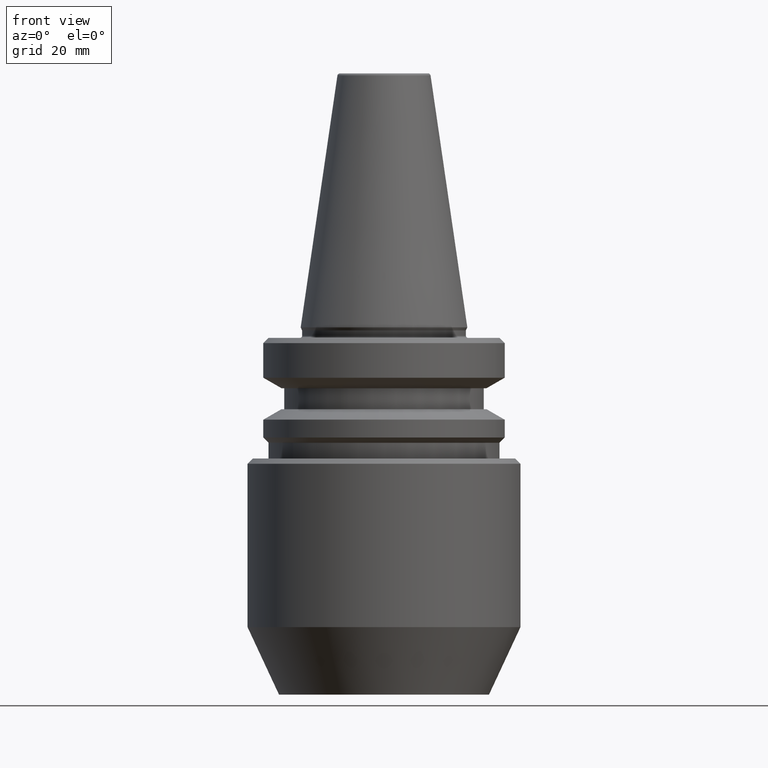
[diagram: clean part render]
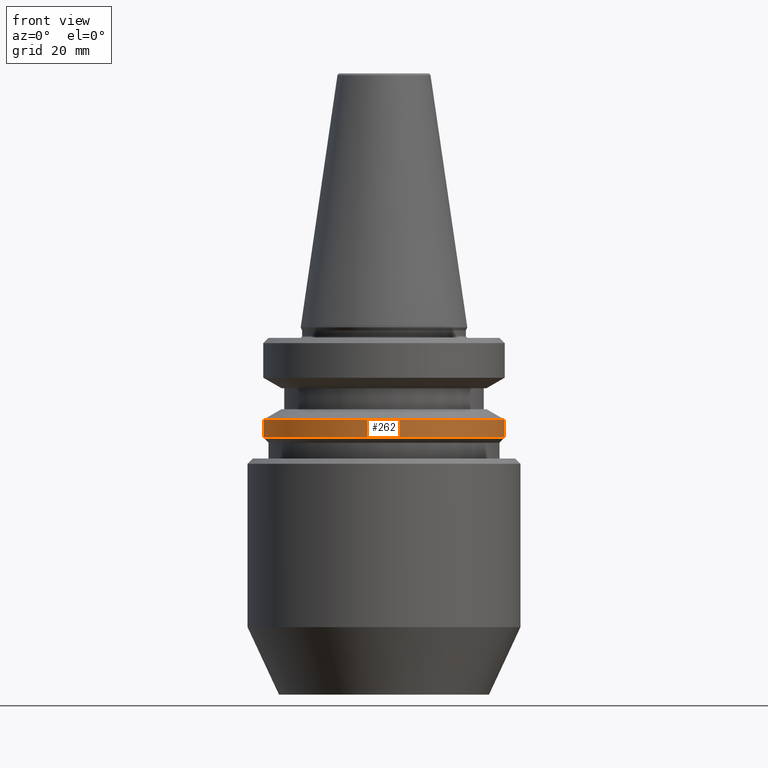
[diagram: same view with one face highlighted and labeled with its STEP entity id]
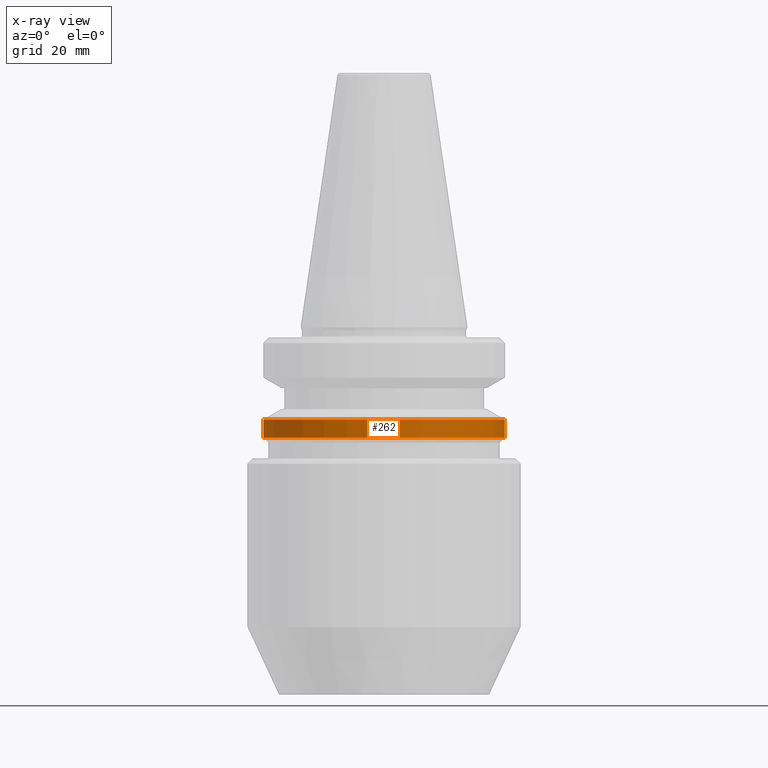
[diagram: x-ray of the same camera — body ghosted, the highlighted face saturated]
A machine part, front view. The second image highlights one B-rep face of the part: STEP entity #262.
The next image is the same camera in x-ray: the body ghosted, the highlighted face saturated — about 0% of this face is hidden behind the body in this view.
In plain terms, the highlighted cylindrical surface (partial cylindrical patch) has radius 23 mm, axis along (-0, -0, 1).
Its self-contained STEP definition (entity closure, byte-faithful):
#3 = EDGE_LOOP ( 'NONE', ( #600, #959, #840, #39 ) ) ;
#14 = VECTOR ( 'NONE', #206, 1000.000000000000000 ) ;
#36 = VECTOR ( 'NONE', #875, 1000.000000000000000 ) ;
#39 = ORIENTED_EDGE ( 'NONE', *, *, #49, .F. ) ;
#49 = EDGE_CURVE ( 'NONE', #886, #1031, #430, .T. ) ;
#67 = CARTESIAN_POINT ( 'NONE',  ( 0.0000000000000000000, 0.0000000000000000000, -21.00000000000001800 ) ) ;
#94 = AXIS2_PLACEMENT_3D ( 'NONE', #825, #552, #298 ) ;
#123 = CARTESIAN_POINT ( 'NONE',  ( 22.99999999999979700, 0.0000000000000000000, -21.00000000000001800 ) ) ;
#206 = DIRECTION ( 'NONE',  ( -0.0000000000000000000, -0.0000000000000000000, 1.000000000000000000 ) ) ;
#234 = CARTESIAN_POINT ( 'NONE',  ( 22.99999999999979700, 0.0000000000000000000, -17.59988266494561100 ) ) ;
#242 = FACE_OUTER_BOUND ( 'NONE', #3, .T. ) ;
#262 = ADVANCED_FACE ( 'NONE', ( #242 ), #638, .T. ) ;
#263 = EDGE_CURVE ( 'NONE', #800, #1031, #459, .T. ) ;
#266 = LINE ( 'NONE', #417, #36 ) ;
#281 = AXIS2_PLACEMENT_3D ( 'NONE', #67, #930, #639 ) ;
#289 = CIRCLE ( 'NONE', #281, 22.99999999999979700 ) ;
#298 = DIRECTION ( 'NONE',  ( 1.000000000000000000, 0.0000000000000000000, 0.0000000000000000000 ) ) ;
#304 = DIRECTION ( 'NONE',  ( -0.0000000000000000000, -0.0000000000000000000, 1.000000000000000000 ) ) ;
#360 = DIRECTION ( 'NONE',  ( 1.000000000000000000, 0.0000000000000000000, 0.0000000000000000000 ) ) ;
#417 = CARTESIAN_POINT ( 'NONE',  ( -22.99999999999979700, 2.816687638038887500E-015, 95.66143460902885900 ) ) ;
#430 = CIRCLE ( 'NONE', #94, 22.99999999999979700 ) ;
#459 = LINE ( 'NONE', #624, #14 ) ;
#479 = CARTESIAN_POINT ( 'NONE',  ( -22.99999999999979700, 2.816687638038887500E-015, -21.00000000000001800 ) ) ;
#552 = DIRECTION ( 'NONE',  ( -0.0000000000000000000, -0.0000000000000000000, 1.000000000000000000 ) ) ;
#600 = ORIENTED_EDGE ( 'NONE', *, *, #750, .F. ) ;
#624 = CARTESIAN_POINT ( 'NONE',  ( 22.99999999999979700, 0.0000000000000000000, 95.66143460902885900 ) ) ;
#638 = CYLINDRICAL_SURFACE ( 'NONE', #1000, 22.99999999999979700 ) ;
#639 = DIRECTION ( 'NONE',  ( 1.000000000000000000, 0.0000000000000000000, 0.0000000000000000000 ) ) ;
#658 = CARTESIAN_POINT ( 'NONE',  ( 0.0000000000000000000, 0.0000000000000000000, 95.66143460902885900 ) ) ;
#720 = EDGE_CURVE ( 'NONE', #1032, #800, #289, .T. ) ;
#750 = EDGE_CURVE ( 'NONE', #1032, #886, #266, .T. ) ;
#766 = CARTESIAN_POINT ( 'NONE',  ( -22.99999999999979700, 2.816687638038887500E-015, -17.59988266494561100 ) ) ;
#800 = VERTEX_POINT ( 'NONE', #123 ) ;
#825 = CARTESIAN_POINT ( 'NONE',  ( 0.0000000000000000000, 0.0000000000000000000, -17.59988266494561100 ) ) ;
#840 = ORIENTED_EDGE ( 'NONE', *, *, #263, .T. ) ;
#875 = DIRECTION ( 'NONE',  ( -0.0000000000000000000, -0.0000000000000000000, 1.000000000000000000 ) ) ;
#886 = VERTEX_POINT ( 'NONE', #766 ) ;
#930 = DIRECTION ( 'NONE',  ( -0.0000000000000000000, -0.0000000000000000000, 1.000000000000000000 ) ) ;
#959 = ORIENTED_EDGE ( 'NONE', *, *, #720, .T. ) ;
#1000 = AXIS2_PLACEMENT_3D ( 'NONE', #658, #304, #360 ) ;
#1031 = VERTEX_POINT ( 'NONE', #234 ) ;
#1032 = VERTEX_POINT ( 'NONE', #479 ) ;